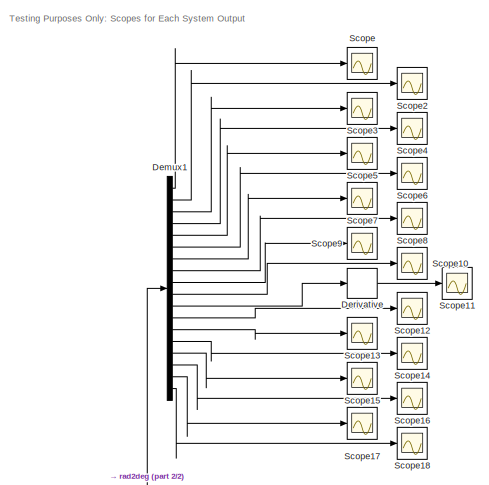
[diagram: root canvas - part 1/2, top right region]
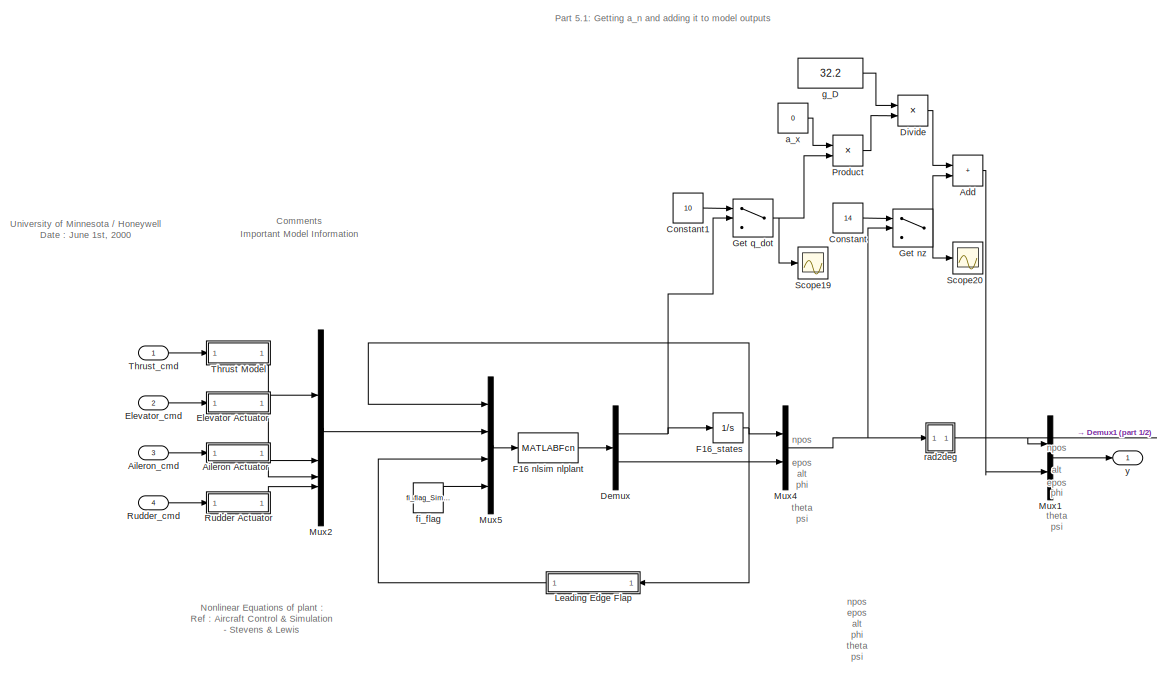
[diagram: root canvas - part 2/2, center side, full height]
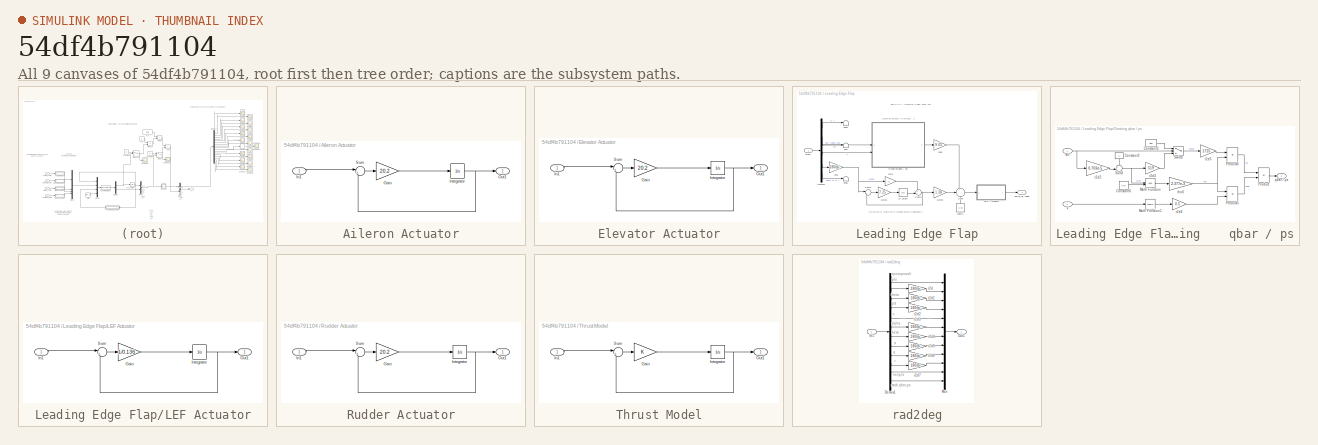
[diagram: thumbnail index - all 9 canvases of the model, root first then tree order]
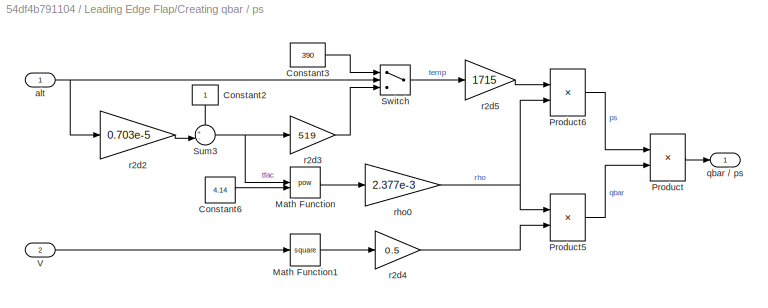
MODEL slx_54df4b791104
KIND model
CONFIG AbsTol = auto
CONFIG EnableMultiTasking = on
CONFIG FixedStep = 0.001
CONFIG MaxStep = auto
CONFIG MinStep = auto
CONFIG RelTol = 1e-3
CONFIG SampleTimeConstraint = Unconstrained
CONFIG SolverName = ode5
CONFIG StartTime = 0.0
CONFIG StopTime = 20
BLOCK [Sum] Add
  IconShape = rectangular
BLOCK [SubSystem] Aileron Actuator
  AncestorBlock = F16_Actuator_Library/Aileron\nActuator
BLOCK [Gain] Aileron Actuator/Gain
  Gain = 20.2
  OutDataTypeStr = Inherit: Same as input
  ParamDataTypeStr = Inherit: Same as input
  SaturateOnIntegerOverflow = on
BLOCK [Inport] Aileron Actuator/In1
BLOCK [Integrator] Aileron Actuator/Integrator 
  ContinuousStateAttributes = 'aileron_state'
  InitialCondition = trim_control_lin(2)
  LowerSaturationLimit = -21.5
  UpperSaturationLimit = 21.5
BLOCK [Outport] Aileron Actuator/Out1
BLOCK [Sum] Aileron Actuator/Sum
  InputSameDT = on
  Inputs = |+-
  OutDataTypeStr = Inherit: Same as first input
  SaturateOnIntegerOverflow = on
BLOCK [Inport] Aileron_cmd
  Port = 3
BLOCK [Constant] Constant
  Value = 14
BLOCK [Constant] Constant1
  Value = 10
BLOCK [Demux] Demux
  DisplayOption = none
  Outputs = [12 6]
BLOCK [Demux] Demux1
  DisplayOption = none
  Outputs = 18
BLOCK [Derivative] Derivative
BLOCK [Product] Divide
  Inputs = /*
BLOCK [SubSystem] Elevator Actuator
  AncestorBlock = F16_Actuator_Library/Elevator\nActuator
BLOCK [Gain] Elevator Actuator/Gain
  Gain = 20.2
  OutDataTypeStr = Inherit: Same as input
  ParamDataTypeStr = Inherit: Same as input
  SaturateOnIntegerOverflow = on
BLOCK [Inport] Elevator Actuator/In1
BLOCK [Integrator] Elevator Actuator/Integrator 
  ContinuousStateAttributes = 'elevator_state'
  InitialCondition = trim_control_lin(1)
  LowerSaturationLimit = -25
  UpperSaturationLimit = 25
BLOCK [Outport] Elevator Actuator/Out1
BLOCK [Sum] Elevator Actuator/Sum
  InputSameDT = on
  Inputs = |+-
  OutDataTypeStr = Inherit: Same as first input
  SaturateOnIntegerOverflow = on
BLOCK [Inport] Elevator_cmd
  Port = 2
BLOCK [MATLABFcn] F16 nlsim nlplant
  MATLABFcn = nlplant
  OutputDimensions = 18
  OutputSignalType = real
BLOCK [Integrator] F16_states
  ContinuousStateAttributes = {'npos','epos','h','phi','theta','psi','Vt','alpha','beta','p','q','r'}
  InitialCondition = trim_state_lin
BLOCK [MultiPortSwitch] Get nz 
  DataPortOrder = Zero-based contiguous
  InputSameDT = off
  Inputs = 1
  SaturateOnIntegerOverflow = off
  zeroidx = on
BLOCK [MultiPortSwitch] Get q_dot
  DataPortOrder = Zero-based contiguous
  InputSameDT = off
  Inputs = 1
  SaturateOnIntegerOverflow = off
  zeroidx = on
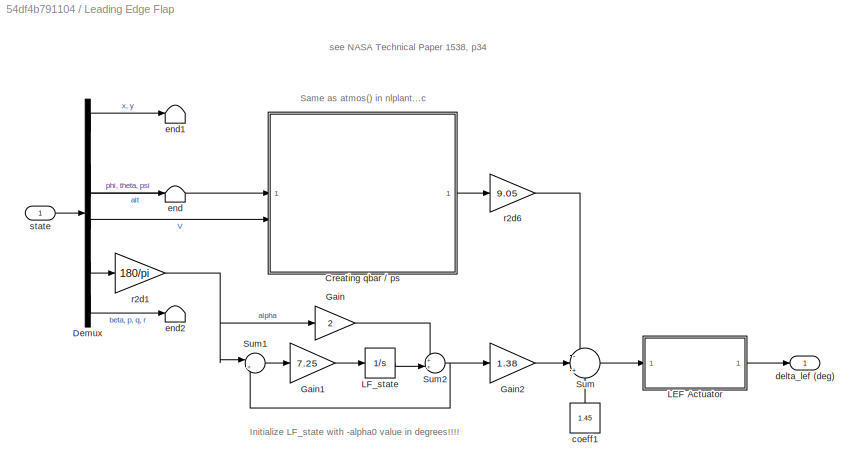
BLOCK [SubSystem] Leading Edge Flap
BLOCK [SubSystem] Leading Edge Flap/Creating    qbar // ps
BLOCK [Constant] Leading Edge Flap/Creating    qbar // ps/Constant2
  NameLocation = left
BLOCK [Constant] Leading Edge Flap/Creating    qbar // ps/Constant3
  Value = 390
BLOCK [Constant] Leading Edge Flap/Creating    qbar // ps/Constant6
  Value = 4.14
BLOCK [Math] Leading Edge Flap/Creating    qbar // ps/Math Function
  Operator = pow
  SignedPower = on
BLOCK [Math] Leading Edge Flap/Creating    qbar // ps/Math Function1
  Operator = square
  SignedPower = on
BLOCK [Product] Leading Edge Flap/Creating    qbar // ps/Product
  InputSameDT = on
  Inputs = /*
  OutDataTypeStr = Inherit: Same as first input
  SaturateOnIntegerOverflow = on
BLOCK [Product] Leading Edge Flap/Creating    qbar // ps/Product5
  InputSameDT = on
  Inputs = **
  OutDataTypeStr = Inherit: Same as first input
  SaturateOnIntegerOverflow = on
BLOCK [Product] Leading Edge Flap/Creating    qbar // ps/Product6
  InputSameDT = on
  Inputs = **
  OutDataTypeStr = Inherit: Same as first input
  SaturateOnIntegerOverflow = on
BLOCK [Sum] Leading Edge Flap/Creating    qbar // ps/Sum3
  InputSameDT = on
  Inputs = +-|
  OutDataTypeStr = Inherit: Same as first input
  SaturateOnIntegerOverflow = on
BLOCK [Switch] Leading Edge Flap/Creating    qbar // ps/Switch
  Threshold = 35000
BLOCK [Inport] Leading Edge Flap/Creating    qbar // ps/V
  Port = 2
BLOCK [Inport] Leading Edge Flap/Creating    qbar // ps/alt
BLOCK [Outport] Leading Edge Flap/Creating    qbar // ps/qbar // ps
BLOCK [Gain] Leading Edge Flap/Creating    qbar // ps/r2d2
  Gain = 0.703e-5
  OutDataTypeStr = Inherit: Same as input
  ParamDataTypeStr = Inherit: Same as input
  SaturateOnIntegerOverflow = on
BLOCK [Gain] Leading Edge Flap/Creating    qbar // ps/r2d3
  Gain = 519
  OutDataTypeStr = Inherit: Same as input
  ParamDataTypeStr = Inherit: Same as input
  SaturateOnIntegerOverflow = on
BLOCK [Gain] Leading Edge Flap/Creating    qbar // ps/r2d4
  Gain = 0.5
  OutDataTypeStr = Inherit: Same as input
  ParamDataTypeStr = Inherit: Same as input
  SaturateOnIntegerOverflow = on
BLOCK [Gain] Leading Edge Flap/Creating    qbar // ps/r2d5
  Gain = 1715
  OutDataTypeStr = Inherit: Same as input
  ParamDataTypeStr = Inherit: Same as input
  SaturateOnIntegerOverflow = on
BLOCK [Gain] Leading Edge Flap/Creating    qbar // ps/rho0
  Gain = 2.377e-3
  OutDataTypeStr = Inherit: Same as input
  ParamDataTypeStr = Inherit: Same as input
  SaturateOnIntegerOverflow = on
BLOCK [Demux] Leading Edge Flap/Demux
  DisplayOption = none
  Outputs = [2,1,3,1,1,4]
BLOCK [Gain] Leading Edge Flap/Gain
  Gain = 2
  OutDataTypeStr = Inherit: Same as input
  ParamDataTypeStr = Inherit: Same as input
  SaturateOnIntegerOverflow = on
BLOCK [Gain] Leading Edge Flap/Gain1
  Gain = 7.25
  OutDataTypeStr = Inherit: Same as input
  ParamDataTypeStr = Inherit: Same as input
  SaturateOnIntegerOverflow = on
BLOCK [Gain] Leading Edge Flap/Gain2
  Gain = 1.38
  OutDataTypeStr = Inherit: Same as input
  ParamDataTypeStr = Inherit: Same as input
  SaturateOnIntegerOverflow = on
BLOCK [SubSystem] Leading Edge Flap/LEF Actuator
  AncestorBlock = F16_Actuator_Library/Aileron\nActuator
BLOCK [Gain] Leading Edge Flap/LEF Actuator/Gain
  Gain = 1/0.136
  OutDataTypeStr = Inherit: Same as input
  ParamDataTypeStr = Inherit: Same as input
  SaturateOnIntegerOverflow = on
BLOCK [Inport] Leading Edge Flap/LEF Actuator/In1
BLOCK [Integrator] Leading Edge Flap/LEF Actuator/Integrator 
  ContinuousStateAttributes = 'LEF_actuator'
  InitialCondition = dLEF
  LowerSaturationLimit = -21.5
  UpperSaturationLimit = 21.5
BLOCK [Outport] Leading Edge Flap/LEF Actuator/Out1
BLOCK [Sum] Leading Edge Flap/LEF Actuator/Sum
  InputSameDT = on
  Inputs = |+-
  OutDataTypeStr = Inherit: Same as first input
  SaturateOnIntegerOverflow = on
BLOCK [Integrator] Leading Edge Flap/LF_state
  InitialCondition = -trim_state_lin(8)*180/pi
BLOCK [Sum] Leading Edge Flap/Sum
  InputSameDT = on
  Inputs = -|+|+
  OutDataTypeStr = Inherit: Same as first input
  SaturateOnIntegerOverflow = on
BLOCK [Sum] Leading Edge Flap/Sum1
  InputSameDT = on
  Inputs = |+-
  OutDataTypeStr = Inherit: Same as first input
  SaturateOnIntegerOverflow = on
BLOCK [Sum] Leading Edge Flap/Sum2
  InputSameDT = on
  Inputs = ++|
  OutDataTypeStr = Inherit: Same as first input
  SaturateOnIntegerOverflow = on
BLOCK [Constant] Leading Edge Flap/coeff1
  NameLocation = left
  Value = 1.45
BLOCK [Outport] Leading Edge Flap/delta_lef (deg)
BLOCK [Terminator] Leading Edge Flap/end
BLOCK [Terminator] Leading Edge Flap/end1
BLOCK [Terminator] Leading Edge Flap/end2
BLOCK [Gain] Leading Edge Flap/r2d1
  Gain = 180/pi
  OutDataTypeStr = Inherit: Same as input
  ParamDataTypeStr = Inherit: Same as input
  SaturateOnIntegerOverflow = on
BLOCK [Gain] Leading Edge Flap/r2d6
  Gain = 9.05
  OutDataTypeStr = Inherit: Same as input
  ParamDataTypeStr = Inherit: Same as input
  SaturateOnIntegerOverflow = on
BLOCK [Inport] Leading Edge Flap/state
BLOCK [Mux] Mux1
  DisplayOption = bar
  Inputs = 2
BLOCK [Mux] Mux2
  DisplayOption = bar
BLOCK [Mux] Mux4
  DisplayOption = bar
  Inputs = 2
BLOCK [Mux] Mux5
  DisplayOption = bar
  Inputs = [12 4 1 1]
BLOCK [Product] Product
BLOCK [SubSystem] Rudder Actuator
  AncestorBlock = F16_Actuator_Library/Rudder\nActuator
BLOCK [Gain] Rudder Actuator/Gain
  Gain = 20.2
  OutDataTypeStr = Inherit: Same as input
  ParamDataTypeStr = Inherit: Same as input
  SaturateOnIntegerOverflow = on
BLOCK [Inport] Rudder Actuator/In1
BLOCK [Integrator] Rudder Actuator/Integrator 
  ContinuousStateAttributes = 'rudder_state'
  InitialCondition = trim_control_lin(3)
  LowerSaturationLimit = -30
  UpperSaturationLimit = 30
BLOCK [Outport] Rudder Actuator/Out1
BLOCK [Sum] Rudder Actuator/Sum
  InputSameDT = on
  Inputs = |+-
  OutDataTypeStr = Inherit: Same as first input
  SaturateOnIntegerOverflow = on
BLOCK [Inport] Rudder_cmd
  Port = 4
BLOCK [Scope] Scope
  Floating = off
  NumInputPorts = 1
  ScopeSpecificationString = Simulink.scopes.TimeScopeBlockCfg('CurrentConfiguration', extmgr.ConfigurationSet(extmgr.Configuration('Core','General UI',true),extmgr.Configuration('Core','Source UI',true),extmgr.Configuration('Sources','WiredSimulink',true,'DataLoggingVariableName','ScopeData1'),extmgr.Configuration('Visuals','Time Domain',true),extmgr.Configuration('Tools','Plot Navigation',true),extmgr.Configuration('Tools',...<+40ch>
BLOCK [Scope] Scope10
  Floating = off
  NumInputPorts = 1
  ScopeSpecificationString = Simulink.scopes.TimeScopeBlockCfg('CurrentConfiguration', extmgr.ConfigurationSet(extmgr.Configuration('Core','General UI',true),extmgr.Configuration('Core','Source UI',true),extmgr.Configuration('Sources','WiredSimulink',true,'DataLoggingVariableName','ScopeData9'),extmgr.Configuration('Visuals','Time Domain',true),extmgr.Configuration('Tools','Plot Navigation',true),extmgr.Configuration('Tools',...<+40ch>
BLOCK [Scope] Scope11
  Floating = off
  NumInputPorts = 1
  ScopeSpecificationString = Simulink.scopes.TimeScopeBlockCfg('CurrentConfiguration', extmgr.ConfigurationSet(extmgr.Configuration('Core','General UI',true),extmgr.Configuration('Core','Source UI',true),extmgr.Configuration('Sources','WiredSimulink',true,'DataLoggingVariableName','ScopeData10'),extmgr.Configuration('Visuals','Time Domain',true,'SerializedDisplays',{struct('MinYLimReal','-14.25229','MaxYLimReal','2.87628','YL...<+1492ch>
BLOCK [Scope] Scope12
  Floating = off
  NumInputPorts = 1
  ScopeSpecificationString = Simulink.scopes.TimeScopeBlockCfg('CurrentConfiguration', extmgr.ConfigurationSet(extmgr.Configuration('Core','General UI',true),extmgr.Configuration('Core','Source UI',true),extmgr.Configuration('Sources','WiredSimulink',true,'DataLoggingVariableName','ScopeData11'),extmgr.Configuration('Visuals','Time Domain',true),extmgr.Configuration('Tools','Plot Navigation',true),extmgr.Configuration('Tools'...<+41ch>
BLOCK [Scope] Scope13
  Floating = off
  NumInputPorts = 1
  ScopeSpecificationString = Simulink.scopes.TimeScopeBlockCfg('CurrentConfiguration', extmgr.ConfigurationSet(extmgr.Configuration('Core','General UI',true),extmgr.Configuration('Core','Source UI',true),extmgr.Configuration('Sources','WiredSimulink',true,'DataLoggingVariableName','ScopeData12'),extmgr.Configuration('Visuals','Time Domain',true),extmgr.Configuration('Tools','Plot Navigation',true),extmgr.Configuration('Tools'...<+41ch>
BLOCK [Scope] Scope14
  Floating = off
  NumInputPorts = 1
  ScopeSpecificationString = Simulink.scopes.TimeScopeBlockCfg('CurrentConfiguration', extmgr.ConfigurationSet(extmgr.Configuration('Core','General UI',true),extmgr.Configuration('Core','Source UI',true),extmgr.Configuration('Sources','WiredSimulink',true,'DataLoggingVariableName','ScopeData13'),extmgr.Configuration('Visuals','Time Domain',true),extmgr.Configuration('Tools','Plot Navigation',true),extmgr.Configuration('Tools'...<+41ch>
BLOCK [Scope] Scope15
  Floating = off
  NumInputPorts = 1
  ScopeSpecificationString = Simulink.scopes.TimeScopeBlockCfg('CurrentConfiguration', extmgr.ConfigurationSet(extmgr.Configuration('Core','General UI',true),extmgr.Configuration('Core','Source UI',true),extmgr.Configuration('Sources','WiredSimulink',true,'DataLoggingVariableName','ScopeData14'),extmgr.Configuration('Visuals','Time Domain',true,'SerializedDisplays',{struct('MinYLimReal','-4.00551','MaxYLimReal','1.5726','YLab...<+1456ch>
BLOCK [Scope] Scope16
  Floating = off
  NumInputPorts = 1
  ScopeSpecificationString = Simulink.scopes.TimeScopeBlockCfg('CurrentConfiguration', extmgr.ConfigurationSet(extmgr.Configuration('Core','General UI',true),extmgr.Configuration('Core','Source UI',true),extmgr.Configuration('Sources','WiredSimulink',true,'DataLoggingVariableName','ScopeData15'),extmgr.Configuration('Visuals','Time Domain',true),extmgr.Configuration('Tools','Plot Navigation',true),extmgr.Configuration('Tools'...<+41ch>
BLOCK [Scope] Scope17
  Floating = off
  NumInputPorts = 1
  ScopeSpecificationString = Simulink.scopes.TimeScopeBlockCfg('CurrentConfiguration', extmgr.ConfigurationSet(extmgr.Configuration('Core','General UI',true),extmgr.Configuration('Core','Source UI',true),extmgr.Configuration('Sources','WiredSimulink',true,'DataLoggingVariableName','ScopeData17'),extmgr.Configuration('Visuals','Time Domain',true),extmgr.Configuration('Tools','Plot Navigation',true),extmgr.Configuration('Tools'...<+41ch>
BLOCK [Scope] Scope18
  Floating = off
  NumInputPorts = 1
  ScopeSpecificationString = Simulink.scopes.TimeScopeBlockCfg('CurrentConfiguration', extmgr.ConfigurationSet(extmgr.Configuration('Core','General UI',true),extmgr.Configuration('Core','Source UI',true),extmgr.Configuration('Sources','WiredSimulink',true,'DataLoggingVariableName','ScopeData18'),extmgr.Configuration('Visuals','Time Domain',true),extmgr.Configuration('Tools','Plot Navigation',true),extmgr.Configuration('Tools'...<+41ch>
BLOCK [Scope] Scope19
  Floating = off
  NumInputPorts = 1
  ScopeSpecificationString = Simulink.scopes.TimeScopeBlockCfg('CurrentConfiguration', extmgr.ConfigurationSet(extmgr.Configuration('Core','General UI',true),extmgr.Configuration('Core','Source UI',true),extmgr.Configuration('Sources','WiredSimulink',true,'DataLoggingVariableName','ScopeData19'),extmgr.Configuration('Visuals','Time Domain',true,'SerializedDisplays',{struct('MinYLimReal','-0.24875','MaxYLimReal','0.05019','YLa...<+1487ch>
BLOCK [Scope] Scope2
  Floating = off
  NumInputPorts = 1
  ScopeSpecificationString = Simulink.scopes.TimeScopeBlockCfg('CurrentConfiguration', extmgr.ConfigurationSet(extmgr.Configuration('Core','General UI',true),extmgr.Configuration('Core','Source UI',true),extmgr.Configuration('Sources','WiredSimulink',true,'DataLoggingVariableName','ScopeData2'),extmgr.Configuration('Visuals','Time Domain',true),extmgr.Configuration('Tools','Plot Navigation',true),extmgr.Configuration('Tools',...<+40ch>
BLOCK [Scope] Scope20
  Floating = off
  NumInputPorts = 1
  ScopeSpecificationString = Simulink.scopes.TimeScopeBlockCfg('CurrentConfiguration', extmgr.ConfigurationSet(extmgr.Configuration('Core','General UI',true),extmgr.Configuration('Core','Source UI',true),extmgr.Configuration('Sources','WiredSimulink',true,'DataLoggingVariableName','ScopeData20'),extmgr.Configuration('Visuals','Time Domain',true,'SerializedDisplays',{struct('MinYLimReal','-4.00551','MaxYLimReal','1.5726','YLab...<+1483ch>
BLOCK [Scope] Scope3
  Floating = off
  NumInputPorts = 1
  ScopeSpecificationString = Simulink.scopes.TimeScopeBlockCfg('CurrentConfiguration', extmgr.ConfigurationSet(extmgr.Configuration('Core','General UI',true),extmgr.Configuration('Core','Source UI',true),extmgr.Configuration('Sources','WiredSimulink',true,'DataLoggingVariableName','ScopeData3'),extmgr.Configuration('Visuals','Time Domain',true),extmgr.Configuration('Tools','Plot Navigation',true),extmgr.Configuration('Tools',...<+40ch>
BLOCK [Scope] Scope4
  Floating = off
  NumInputPorts = 1
  ScopeSpecificationString = Simulink.scopes.TimeScopeBlockCfg('CurrentConfiguration', extmgr.ConfigurationSet(extmgr.Configuration('Core','General UI',true),extmgr.Configuration('Core','Source UI',true),extmgr.Configuration('Sources','WiredSimulink',true,'DataLoggingVariableName','ScopeData4'),extmgr.Configuration('Visuals','Time Domain',true),extmgr.Configuration('Tools','Plot Navigation',true),extmgr.Configuration('Tools',...<+40ch>
BLOCK [Scope] Scope5
  Floating = off
  NumInputPorts = 1
  ScopeSpecificationString = Simulink.scopes.TimeScopeBlockCfg('CurrentConfiguration', extmgr.ConfigurationSet(extmgr.Configuration('Core','General UI',true),extmgr.Configuration('Core','Source UI',true),extmgr.Configuration('Sources','WiredSimulink',true,'DataLoggingVariableName','ScopeData5'),extmgr.Configuration('Visuals','Time Domain',true),extmgr.Configuration('Tools','Plot Navigation',true),extmgr.Configuration('Tools',...<+40ch>
BLOCK [Scope] Scope6
  Floating = off
  NumInputPorts = 1
  ScopeSpecificationString = Simulink.scopes.TimeScopeBlockCfg('CurrentConfiguration', extmgr.ConfigurationSet(extmgr.Configuration('Core','General UI',true),extmgr.Configuration('Core','Source UI',true),extmgr.Configuration('Sources','WiredSimulink',true,'DataLoggingVariableName','ScopeData6'),extmgr.Configuration('Visuals','Time Domain',true),extmgr.Configuration('Tools','Plot Navigation',true),extmgr.Configuration('Tools',...<+40ch>
BLOCK [Scope] Scope7
  Floating = off
  NumInputPorts = 1
  ScopeSpecificationString = Simulink.scopes.TimeScopeBlockCfg('CurrentConfiguration', extmgr.ConfigurationSet(extmgr.Configuration('Core','General UI',true),extmgr.Configuration('Core','Source UI',true),extmgr.Configuration('Sources','WiredSimulink',true,'DataLoggingVariableName','ScopeData7'),extmgr.Configuration('Visuals','Time Domain',true),extmgr.Configuration('Tools','Plot Navigation',true),extmgr.Configuration('Tools',...<+40ch>
BLOCK [Scope] Scope8
  Floating = off
  NumInputPorts = 1
  ScopeSpecificationString = Simulink.scopes.TimeScopeBlockCfg('CurrentConfiguration', extmgr.ConfigurationSet(extmgr.Configuration('Core','General UI',true),extmgr.Configuration('Core','Source UI',true),extmgr.Configuration('Sources','WiredSimulink',true,'DataLoggingVariableName','ScopeData8'),extmgr.Configuration('Visuals','Time Domain',true),extmgr.Configuration('Tools','Plot Navigation',true),extmgr.Configuration('Tools',...<+40ch>
BLOCK [Scope] Scope9
  Floating = off
  NumInputPorts = 1
  ScopeSpecificationString = Simulink.scopes.TimeScopeBlockCfg('CurrentConfiguration', extmgr.ConfigurationSet(extmgr.Configuration('Core','General UI',true),extmgr.Configuration('Core','Source UI',true),extmgr.Configuration('Sources','WiredSimulink',true,'DataLoggingVariableName','ScopeData16'),extmgr.Configuration('Visuals','Time Domain',true),extmgr.Configuration('Tools','Plot Navigation',true),extmgr.Configuration('Tools'...<+41ch>
BLOCK [SubSystem] Thrust Model
  AncestorBlock = F16_Actuator_Library/Thrust\nModel
BLOCK [Gain] Thrust Model/Gain
  OutDataTypeStr = Inherit: Same as input
  ParamDataTypeStr = Inherit: Same as input
  SaturateOnIntegerOverflow = on
BLOCK [Inport] Thrust Model/In1
BLOCK [Integrator] Thrust Model/Integrator 
  ContinuousStateAttributes = 'thrust_state'
  InitialCondition = trim_thrust_lin
  LowerSaturationLimit = -30
  UpperSaturationLimit = 30
BLOCK [Outport] Thrust Model/Out1
BLOCK [Sum] Thrust Model/Sum
  InputSameDT = on
  Inputs = |+-
  OutDataTypeStr = Inherit: Same as first input
  SaturateOnIntegerOverflow = on
BLOCK [Inport] Thrust_cmd
BLOCK [Constant] a_x
  Value = 0
BLOCK [Constant] fi_flag
  Value = fi_flag_Simulink
BLOCK [Constant] g_D
  Value = 32.2
BLOCK [SubSystem] rad2deg
BLOCK [Demux] rad2deg/Demux1
  DisplayOption = none
  Outputs = [3 1 1 1 1 1 1 1 1 1 3 3]
BLOCK [Inport] rad2deg/In1
BLOCK [Mux] rad2deg/Mux
  DisplayOption = bar
  Inputs = [3 1 1 1 1 1 1 1 1 1 3 3]
BLOCK [Outport] rad2deg/Out1
BLOCK [Gain] rad2deg/r2d
  Gain = 180/pi
  OutDataTypeStr = Inherit: Same as input
  ParamDataTypeStr = Inherit: Same as input
  SaturateOnIntegerOverflow = on
BLOCK [Gain] rad2deg/r2d1
  Gain = 180/pi
  OutDataTypeStr = Inherit: Same as input
  ParamDataTypeStr = Inherit: Same as input
  SaturateOnIntegerOverflow = on
BLOCK [Gain] rad2deg/r2d2
  Gain = 180/pi
  OutDataTypeStr = Inherit: Same as input
  ParamDataTypeStr = Inherit: Same as input
  SaturateOnIntegerOverflow = on
BLOCK [Gain] rad2deg/r2d3
  Gain = 180/pi
  OutDataTypeStr = Inherit: Same as input
  ParamDataTypeStr = Inherit: Same as input
  SaturateOnIntegerOverflow = on
BLOCK [Gain] rad2deg/r2d4
  Gain = 180/pi
  OutDataTypeStr = Inherit: Same as input
  ParamDataTypeStr = Inherit: Same as input
  SaturateOnIntegerOverflow = on
BLOCK [Gain] rad2deg/r2d5
  Gain = 180/pi
  OutDataTypeStr = Inherit: Same as input
  ParamDataTypeStr = Inherit: Same as input
  SaturateOnIntegerOverflow = on
BLOCK [Gain] rad2deg/r2d6
  Gain = 180/pi
  OutDataTypeStr = Inherit: Same as input
  ParamDataTypeStr = Inherit: Same as input
  SaturateOnIntegerOverflow = on
BLOCK [Gain] rad2deg/r2d7
  Gain = 180/pi
  OutDataTypeStr = Inherit: Same as input
  ParamDataTypeStr = Inherit: Same as input
  SaturateOnIntegerOverflow = on
BLOCK [Outport] y
  SignalName = {'a_n','npos','epos','h','phi','theta','psi','Vt','alpha','beta','p','q','r','nx','ny','nz','mach','qbar','ps'}
ANNOTATION (root): Testing Purposes Only: Scopes for Each System Output
ANNOTATION (root): Comments
ANNOTATION (root): Important Model Information
ANNOTATION (root): Nonlinear Equations of plant : Ref : Aircraft Control & Simulation - Stevens & Lewis
ANNOTATION (root): Part 5.1: Getting a_n and adding it to model outputs
ANNOTATION (root): University of Minnesota / Honeywell Date : June 1st, 2000
ANNOTATION (root): npos epos alt phi theta psi vel alpha beta p q r nx ny nz mach qbar ps
ANNOTATION (root): npos epos alt phi theta psi vel alpha beta p q r nx ny nz mach qbar ps nz
ANNOTATION Leading Edge Flap: Initialize LF_state with -alpha0 value in degrees!!!!
ANNOTATION Leading Edge Flap: Same as atmos() in nlplant...c
ANNOTATION Leading Edge Flap: see NASA Technical Paper 1538, p34
ANNOTATION rad2deg: alpha
ANNOTATION rad2deg: beta
ANNOTATION rad2deg: mach,qbar,ps
ANNOTATION rad2deg: npos,epos,alt
ANNOTATION rad2deg: nx,ny,nz
ANNOTATION rad2deg: p
ANNOTATION rad2deg: phi
ANNOTATION rad2deg: psi
ANNOTATION rad2deg: q
ANNOTATION rad2deg: r
ANNOTATION rad2deg: theta
ANNOTATION rad2deg: v
LINE Add:1 -> Mux1:2
LINE Aileron Actuator:1 -> Mux2:3
LINE Aileron_cmd:1 -> Aileron Actuator:1
LINE Constant1:1 -> Get q_dot:1
LINE Constant:1 -> Get nz :1
LINE Demux1:1 -> Scope:1
LINE Demux1:10 -> Scope10:1
LINE Demux1:11 -> Derivative:1
LINE Demux1:12 -> Scope12:1
LINE Demux1:13 -> Scope13:1
LINE Demux1:14 -> Scope14:1
LINE Demux1:15 -> Scope15:1
LINE Demux1:16 -> Scope16:1
LINE Demux1:17 -> Scope17:1
LINE Demux1:18 -> Scope18:1
LINE Demux1:2 -> Scope2:1
LINE Demux1:3 -> Scope3:1
LINE Demux1:4 -> Scope4:1
LINE Demux1:5 -> Scope5:1
LINE Demux1:6 -> Scope6:1
LINE Demux1:7 -> Scope7:1
LINE Demux1:8 -> Scope8:1
LINE Demux1:9 -> Scope9:1
NET Demux:1 -> F16_states:1, Get q_dot:2
LINE Demux:2 -> Mux4:2
LINE Derivative:1 -> Scope11:1
LINE Divide:1 -> Add:1
LINE Elevator Actuator:1 -> Mux2:2
LINE Elevator_cmd:1 -> Elevator Actuator:1
LINE F16 nlsim nlplant:1 -> Demux:1
NET F16_states:1 -> Leading Edge Flap:1, Mux4:1, Mux5:1
NET Get nz :1 -> Add:2, Scope20:1
NET Get q_dot:1 -> Product:2, Scope19:1
LINE Leading Edge Flap/Creating    qbar // ps/Constant2:1 -> Leading Edge Flap/Creating    qbar // ps/Sum3:1
LINE Leading Edge Flap/Creating    qbar // ps/Constant3:1 -> Leading Edge Flap/Creating    qbar // ps/Switch:1
LINE Leading Edge Flap/Creating    qbar // ps/Constant6:1 -> Leading Edge Flap/Creating    qbar // ps/Math Function:2
LINE Leading Edge Flap/Creating    qbar // ps/Math Function1:1 -> Leading Edge Flap/Creating    qbar // ps/r2d4:1
LINE Leading Edge Flap/Creating    qbar // ps/Math Function:1 -> Leading Edge Flap/Creating    qbar // ps/rho0:1
LINE Leading Edge Flap/Creating    qbar // ps/Product5:1 -> Leading Edge Flap/Creating    qbar // ps/Product:2
LINE Leading Edge Flap/Creating    qbar // ps/Product6:1 -> Leading Edge Flap/Creating    qbar // ps/Product:1
LINE Leading Edge Flap/Creating    qbar // ps/Product:1 -> Leading Edge Flap/Creating    qbar // ps/qbar // ps:1
NET Leading Edge Flap/Creating    qbar // ps/Sum3:1 -> Leading Edge Flap/Creating    qbar // ps/Math Function:1, Leading Edge Flap/Creating    qbar // ps/r2d3:1
LINE Leading Edge Flap/Creating    qbar // ps/Switch:1 -> Leading Edge Flap/Creating    qbar // ps/r2d5:1
LINE Leading Edge Flap/Creating    qbar // ps/V:1 -> Leading Edge Flap/Creating    qbar // ps/Math Function1:1
NET Leading Edge Flap/Creating    qbar // ps/alt:1 -> Leading Edge Flap/Creating    qbar // ps/Switch:2, Leading Edge Flap/Creating    qbar // ps/r2d2:1
LINE Leading Edge Flap/Creating    qbar // ps/r2d2:1 -> Leading Edge Flap/Creating    qbar // ps/Sum3:2
LINE Leading Edge Flap/Creating    qbar // ps/r2d3:1 -> Leading Edge Flap/Creating    qbar // ps/Switch:3
LINE Leading Edge Flap/Creating    qbar // ps/r2d4:1 -> Leading Edge Flap/Creating    qbar // ps/Product5:2
LINE Leading Edge Flap/Creating    qbar // ps/r2d5:1 -> Leading Edge Flap/Creating    qbar // ps/Product6:1
NET Leading Edge Flap/Creating    qbar // ps/rho0:1 -> Leading Edge Flap/Creating    qbar // ps/Product5:1, Leading Edge Flap/Creating    qbar // ps/Product6:2
LINE Leading Edge Flap/Creating    qbar // ps:1 -> Leading Edge Flap/r2d6:1
LINE Leading Edge Flap/Demux:1 -> Leading Edge Flap/end1:1
LINE Leading Edge Flap/Demux:2 -> Leading Edge Flap/Creating    qbar // ps:1
LINE Leading Edge Flap/Demux:3 -> Leading Edge Flap/end:1
LINE Leading Edge Flap/Demux:4 -> Leading Edge Flap/Creating    qbar // ps:2
LINE Leading Edge Flap/Demux:5 -> Leading Edge Flap/r2d1:1
LINE Leading Edge Flap/Demux:6 -> Leading Edge Flap/end2:1
LINE Leading Edge Flap/Gain1:1 -> Leading Edge Flap/LF_state:1
LINE Leading Edge Flap/Gain2:1 -> Leading Edge Flap/Sum:2
LINE Leading Edge Flap/Gain:1 -> Leading Edge Flap/Sum2:1
LINE Leading Edge Flap/LEF Actuator:1 -> Leading Edge Flap/delta_lef (deg):1
LINE Leading Edge Flap/LF_state:1 -> Leading Edge Flap/Sum2:2
LINE Leading Edge Flap/Sum1:1 -> Leading Edge Flap/Gain1:1
NET Leading Edge Flap/Sum2:1 -> Leading Edge Flap/Gain2:1, Leading Edge Flap/Sum1:2
LINE Leading Edge Flap/Sum:1 -> Leading Edge Flap/LEF Actuator:1
LINE Leading Edge Flap/coeff1:1 -> Leading Edge Flap/Sum:3
NET Leading Edge Flap/r2d1:1 -> Leading Edge Flap/Gain:1, Leading Edge Flap/Sum1:1
LINE Leading Edge Flap/r2d6:1 -> Leading Edge Flap/Sum:1
LINE Leading Edge Flap/state:1 -> Leading Edge Flap/Demux:1
LINE Leading Edge Flap:1 -> Mux5:3
LINE Mux1:1 -> y:1
LINE Mux2:1 -> Mux5:2
NET Mux4:1 -> Get nz :2, rad2deg:1
LINE Mux5:1 -> F16 nlsim nlplant:1
LINE Product:1 -> Divide:2
LINE Rudder Actuator:1 -> Mux2:4
LINE Rudder_cmd:1 -> Rudder Actuator:1
LINE Thrust Model:1 -> Mux2:1
LINE Thrust_cmd:1 -> Thrust Model:1
LINE a_x:1 -> Product:1
LINE fi_flag:1 -> Mux5:4
LINE g_D:1 -> Divide:1
LINE rad2deg/Demux1:1 -> rad2deg/Mux:1
LINE rad2deg/Demux1:10 -> rad2deg/r2d7:1
LINE rad2deg/Demux1:11 -> rad2deg/Mux:11
LINE rad2deg/Demux1:12 -> rad2deg/Mux:12
LINE rad2deg/Demux1:2 -> rad2deg/r2d:1
LINE rad2deg/Demux1:3 -> rad2deg/r2d1:1
LINE rad2deg/Demux1:4 -> rad2deg/r2d2:1
LINE rad2deg/Demux1:5 -> rad2deg/Mux:5
LINE rad2deg/Demux1:6 -> rad2deg/r2d3:1
LINE rad2deg/Demux1:7 -> rad2deg/r2d4:1
LINE rad2deg/Demux1:8 -> rad2deg/r2d5:1
LINE rad2deg/Demux1:9 -> rad2deg/r2d6:1
LINE rad2deg/In1:1 -> rad2deg/Demux1:1
LINE rad2deg/Mux:1 -> rad2deg/Out1:1
LINE rad2deg/r2d1:1 -> rad2deg/Mux:3
LINE rad2deg/r2d2:1 -> rad2deg/Mux:4
LINE rad2deg/r2d3:1 -> rad2deg/Mux:6
LINE rad2deg/r2d4:1 -> rad2deg/Mux:7
LINE rad2deg/r2d5:1 -> rad2deg/Mux:8
LINE rad2deg/r2d6:1 -> rad2deg/Mux:9
LINE rad2deg/r2d7:1 -> rad2deg/Mux:10
LINE rad2deg/r2d:1 -> rad2deg/Mux:2
NET rad2deg:1 -> Demux1:1, Mux1:1
note: NET lines group one-source signal fan-out (src -> all destinations, sorted); 1:1 wires keep LINE
